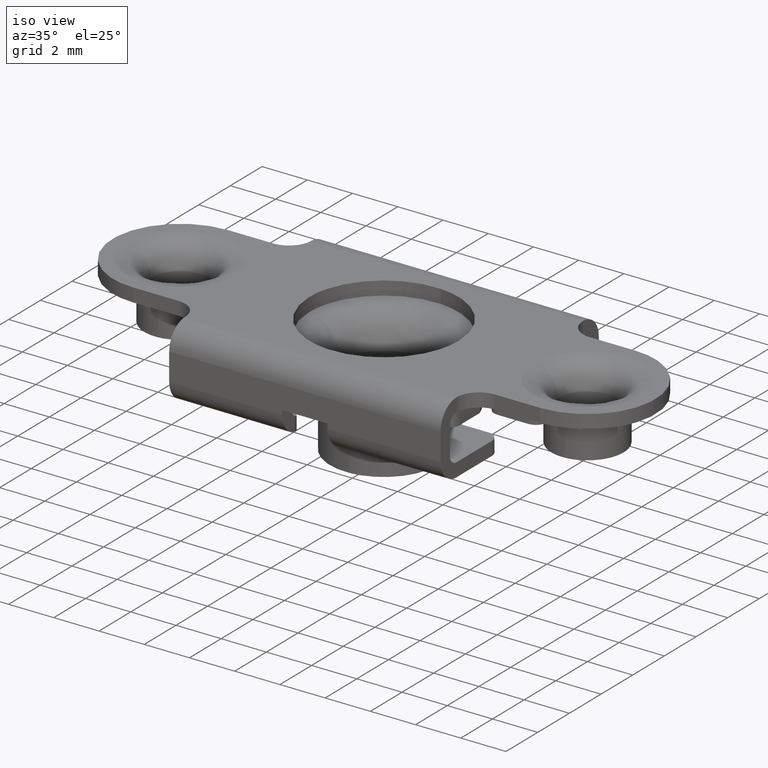
[diagram: clean part render]
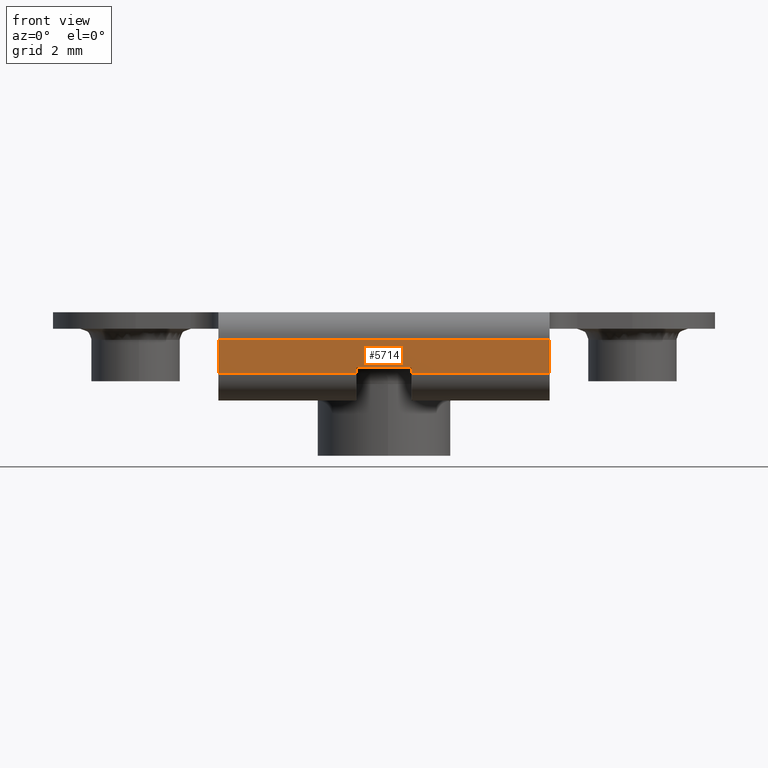
[diagram: tour spotlight — one face highlighted and labeled with its STEP entity id]
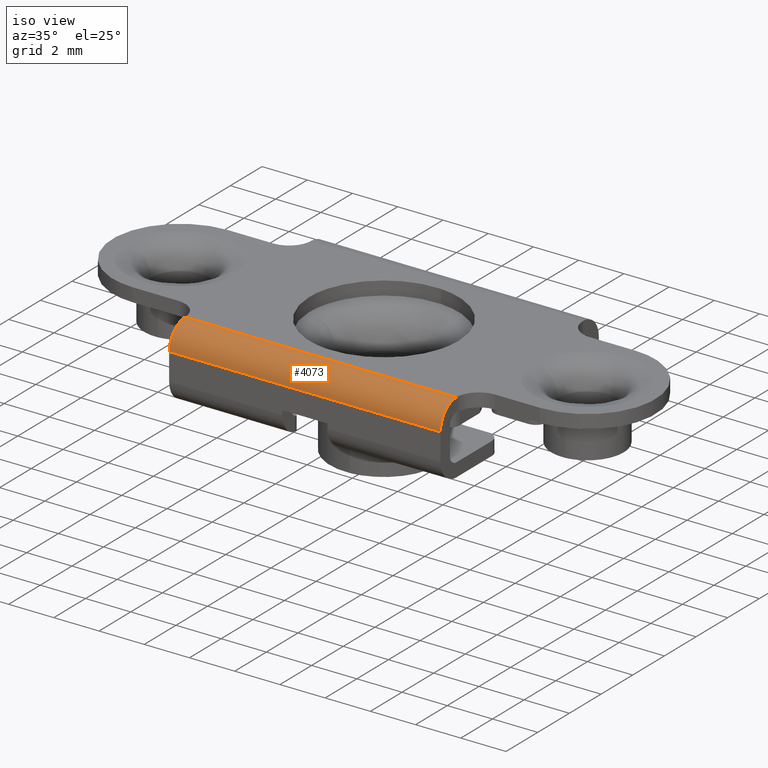
[diagram: tour spotlight — one face highlighted and labeled with its STEP entity id]
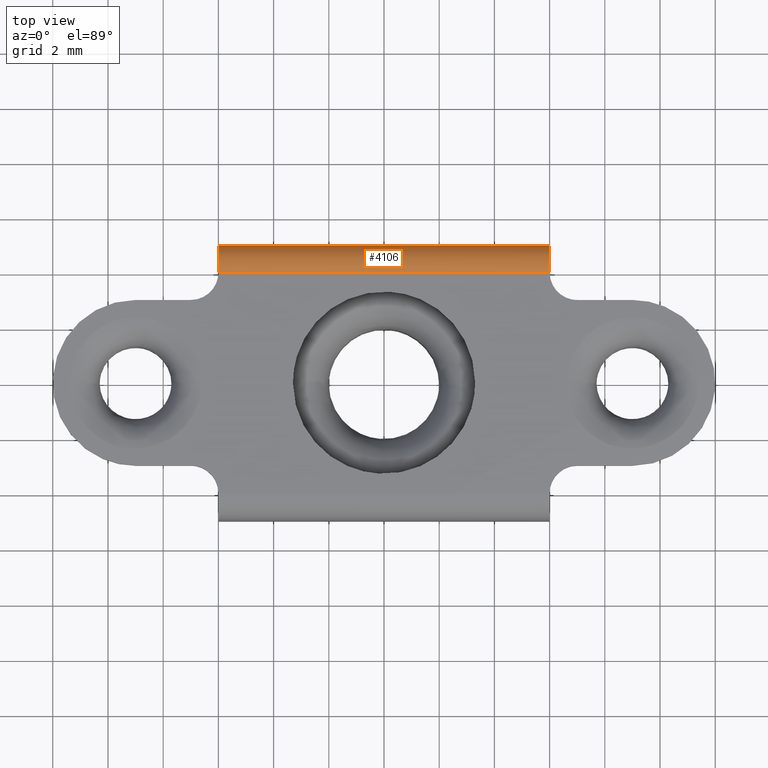
[diagram: tour spotlight — one face highlighted and labeled with its STEP entity id]
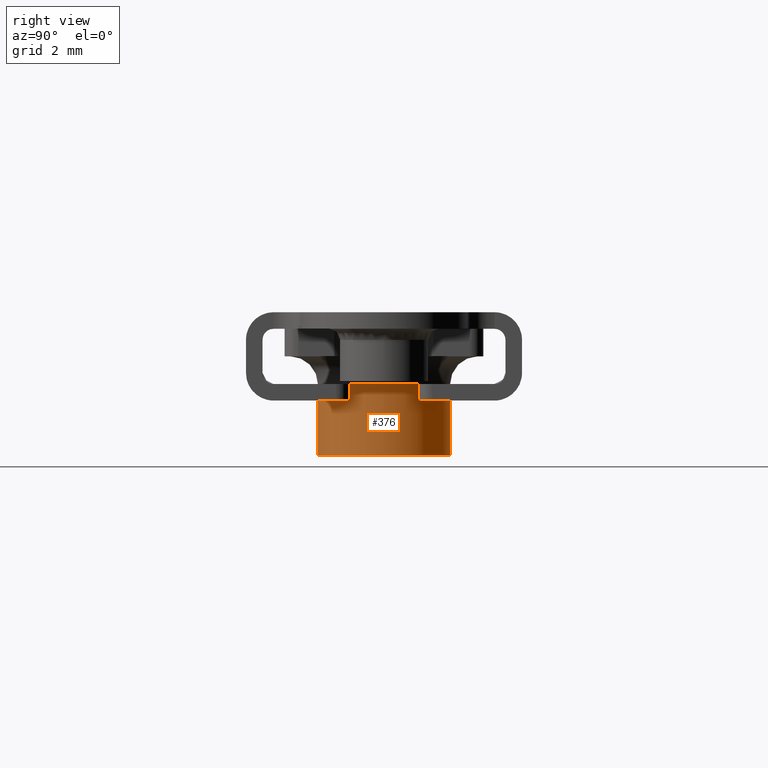
[diagram: tour spotlight — one face highlighted and labeled with its STEP entity id]
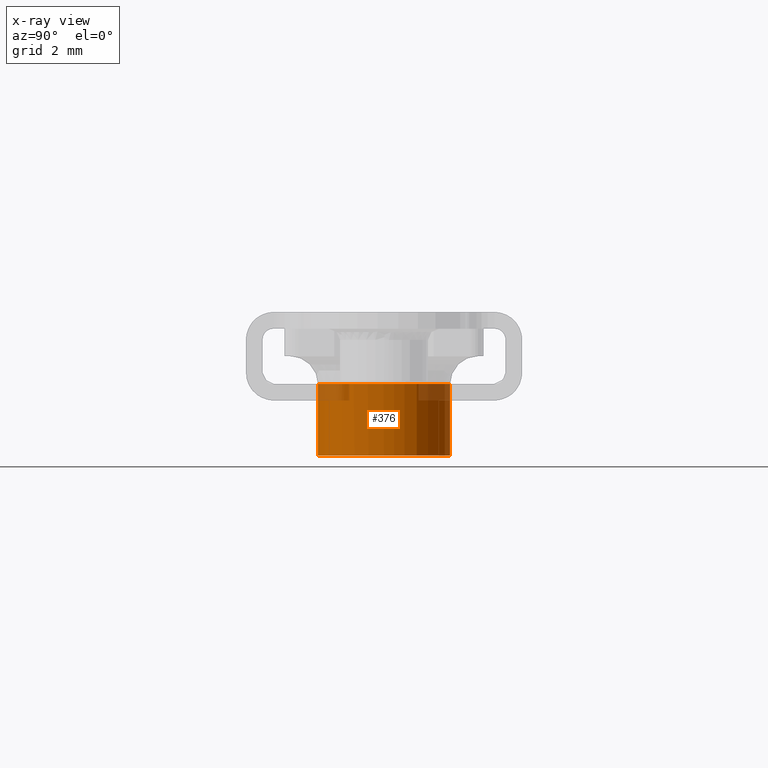
[diagram: x-ray of the same camera — body ghosted, this tour face saturated]
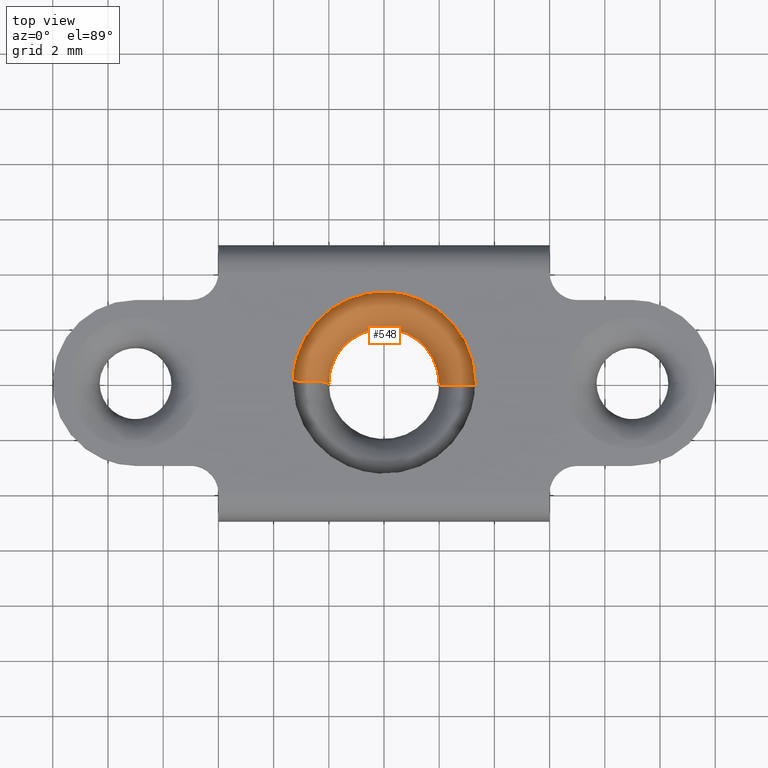
[diagram: tour spotlight — one face highlighted and labeled with its STEP entity id]
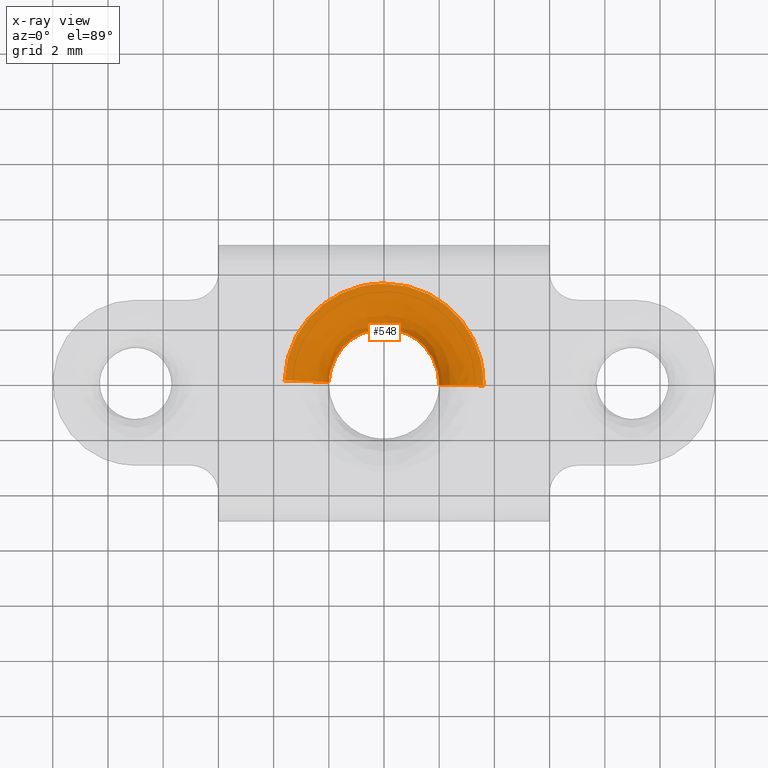
[diagram: x-ray of the same camera — body ghosted, this tour face saturated]
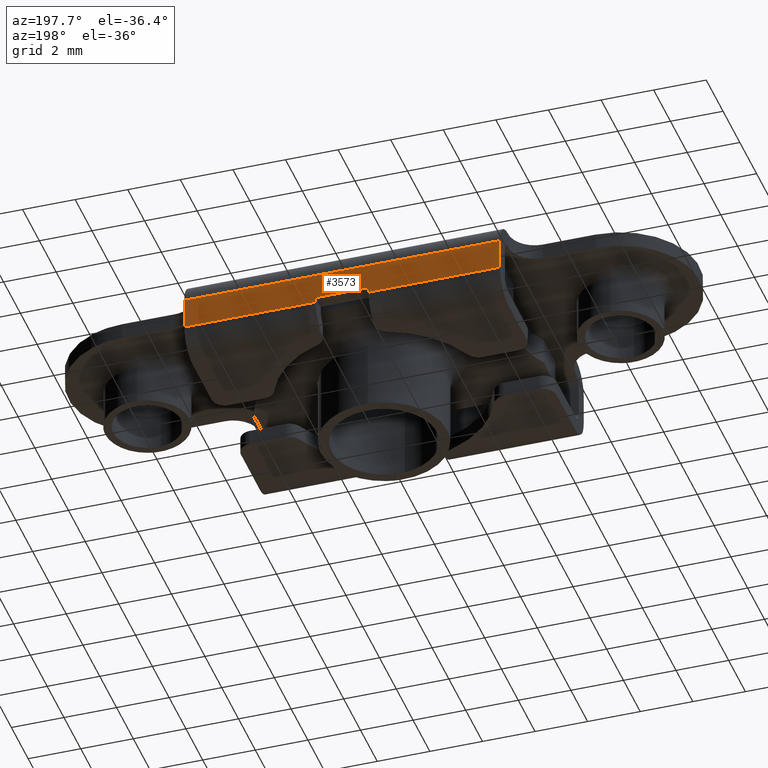
[diagram: tour spotlight — one face highlighted and labeled with its STEP entity id]
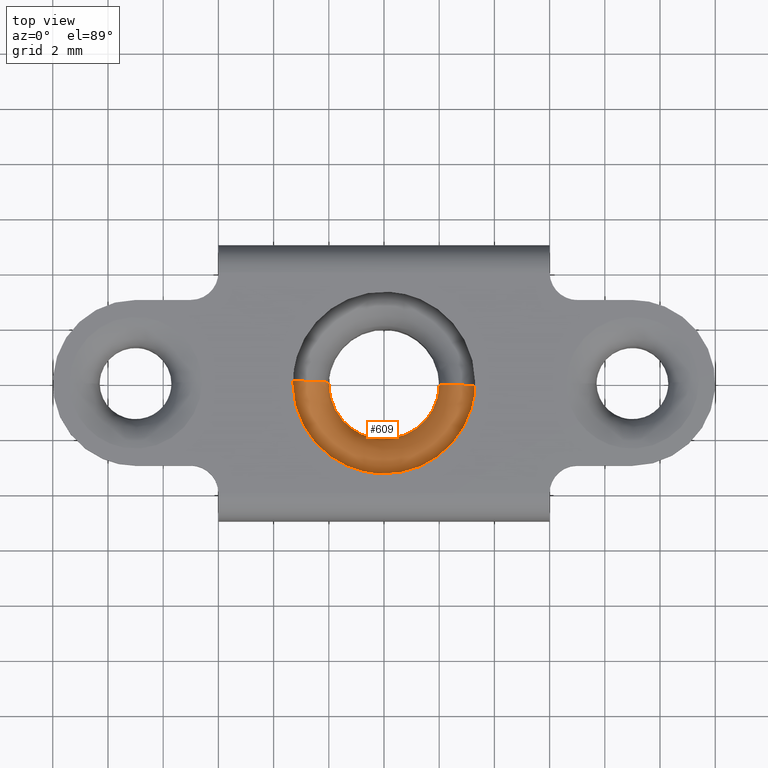
[diagram: tour spotlight — one face highlighted and labeled with its STEP entity id]
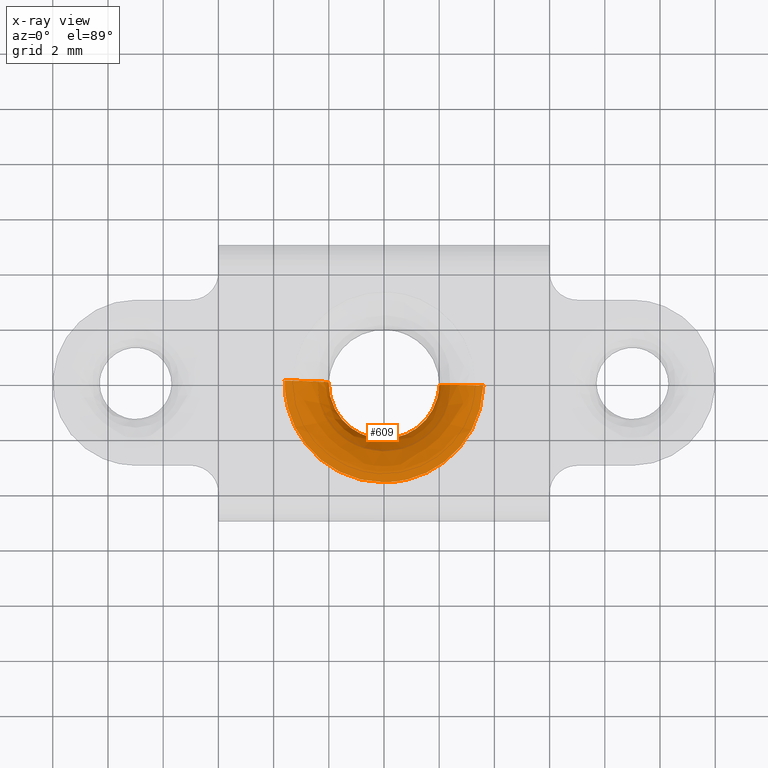
[diagram: x-ray of the same camera — body ghosted, this tour face saturated]
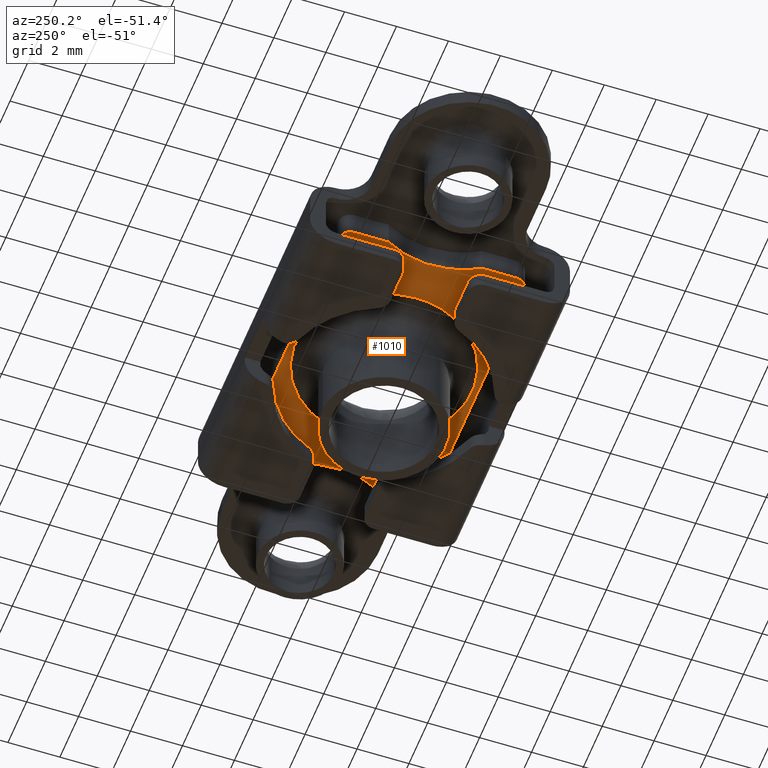
[diagram: tour spotlight — one face highlighted and labeled with its STEP entity id]
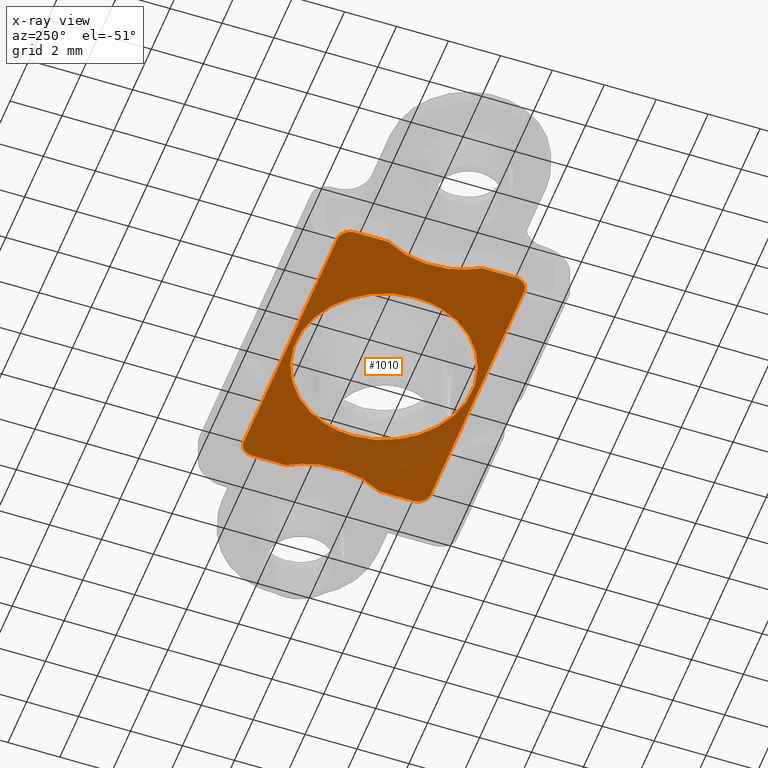
[diagram: x-ray of the same camera — body ghosted, this tour face saturated]
A machine part: a face-by-face anatomy tour. The part has 110 B-rep faces; the first image is the clean iso view, then the 8 largest visible faces are spotlighted one at a time (largest first), each with its STEP entity span.

Face 1 — front view, entity #5714. In plain terms, the highlighted face is a freeform B-spline surface patch.
Definition (entity closure, byte-faithful):
#3076=CARTESIAN_POINT('',(6.0,-5.0,-1.0));
#3077=VERTEX_POINT('',#3076);
#3091=CARTESIAN_POINT('',(6.0,-4.999999999995400,-2.199999999986035));
#3092=VERTEX_POINT('',#3091);
#3093=CARTESIAN_POINT('',(6.0,-4.999999999995400,-2.199999999986035));
#3094=CARTESIAN_POINT('',(6.0,-5.0,-1.0));
#3095=QUASI_UNIFORM_CURVE('',1,(#3093,#3094),.UNSPECIFIED.,.F.,.U.);
#3096=EDGE_CURVE('',#3092,#3077,#3095,.T.);
#4051=CARTESIAN_POINT('',(-6.0,-5.0,-1.0));
#4052=VERTEX_POINT('',#4051);
#4066=CARTESIAN_POINT('',(6.0,-5.0,-1.0));
#4067=CARTESIAN_POINT('',(-6.0,-5.0,-1.0));
#4068=QUASI_UNIFORM_CURVE('',1,(#4066,#4067),.UNSPECIFIED.,.F.,.U.);
#4069=EDGE_CURVE('',#3077,#4052,#4068,.T.);
#4932=CARTESIAN_POINT('',(1.0,-4.999999999997440,-2.199999999984400));
#4933=VERTEX_POINT('',#4932);
#4947=CARTESIAN_POINT('',(1.0,-4.999999999997450,-1.999999999999885));
#4948=VERTEX_POINT('',#4947);
#4949=CARTESIAN_POINT('',(1.0,-4.999999999997440,-2.199999999984400));
#4950=CARTESIAN_POINT('',(1.0,-4.999999999997450,-1.999999999999885));
#4951=QUASI_UNIFORM_CURVE('',1,(#4949,#4950),.UNSPECIFIED.,.F.,.U.);
#4952=EDGE_CURVE('',#4933,#4948,#4951,.T.);
#4974=CARTESIAN_POINT('',(-1.0,-4.999999999997440,-2.199999999984400));
#4975=VERTEX_POINT('',#4974);
#5012=CARTESIAN_POINT('',(-1.0,-4.999999999997450,-1.999999999999945));
#5013=VERTEX_POINT('',#5012);
#5019=CARTESIAN_POINT('',(-1.0,-4.999999999997450,-1.999999999999945));
#5020=CARTESIAN_POINT('',(-1.0,-4.999999999997440,-2.199999999984400));
#5021=QUASI_UNIFORM_CURVE('',1,(#5019,#5020),.UNSPECIFIED.,.F.,.U.);
#5022=EDGE_CURVE('',#5013,#4975,#5021,.T.);
#5038=CARTESIAN_POINT('',(1.0,-4.999999999997450,-1.999999999999885));
#5039=CARTESIAN_POINT('',(-1.0,-4.999999999997450,-1.999999999999945));
#5040=QUASI_UNIFORM_CURVE('',1,(#5038,#5039),.UNSPECIFIED.,.F.,.U.);
#5041=EDGE_CURVE('',#4948,#5013,#5040,.T.);
#5365=CARTESIAN_POINT('',(1.0,-4.999999999997440,-2.199999999984400));
#5366=CARTESIAN_POINT('',(6.0,-4.999999999995400,-2.199999999986035));
#5367=QUASI_UNIFORM_CURVE('',1,(#5365,#5366),.UNSPECIFIED.,.F.,.U.);
#5368=EDGE_CURVE('',#4933,#3092,#5367,.T.);
#5640=CARTESIAN_POINT('',(-6.0,-4.999999999995400,-2.199999999986035));
#5641=VERTEX_POINT('',#5640);
#5642=CARTESIAN_POINT('',(-6.0,-4.999999999995400,-2.199999999986035));
#5643=CARTESIAN_POINT('',(-6.0,-5.0,-1.0));
#5644=QUASI_UNIFORM_CURVE('',1,(#5642,#5643),.UNSPECIFIED.,.F.,.U.);
#5645=EDGE_CURVE('',#5641,#4052,#5644,.T.);
#5695=CARTESIAN_POINT('',(-6.599399976741672,-5.0,-2.259939997659505));
#5696=CARTESIAN_POINT('',(-6.599399976741672,-5.0,-0.940059970140022));
#5697=CARTESIAN_POINT('',(6.599400298606754,-5.0,-2.259939997659505));
#5698=CARTESIAN_POINT('',(6.599400298606754,-5.0,-0.940059970140022));
#5699=B_SPLINE_SURFACE_WITH_KNOTS('',1,1,((#5695,#5697),(#5696,#5698)),.UNSPECIFIED.,.F.,.F.,.U.,(2,2),(2,2),(0.041708334948495,0.958291687403247),(0.0,13.198800275348431),.UNSPECIFIED.);
#5700=ORIENTED_EDGE('',*,*,#3096,.T.);
#5701=ORIENTED_EDGE('',*,*,#4069,.T.);
#5702=ORIENTED_EDGE('',*,*,#5645,.F.);
#5703=CARTESIAN_POINT('',(-6.0,-4.999999999995400,-2.199999999986035));
#5704=CARTESIAN_POINT('',(-1.0,-4.999999999997440,-2.199999999984400));
#5705=QUASI_UNIFORM_CURVE('',1,(#5703,#5704),.UNSPECIFIED.,.F.,.U.);
#5706=EDGE_CURVE('',#5641,#4975,#5705,.T.);
#5707=ORIENTED_EDGE('',*,*,#5706,.T.);
#5708=ORIENTED_EDGE('',*,*,#5022,.F.);
#5709=ORIENTED_EDGE('',*,*,#5041,.F.);
#5710=ORIENTED_EDGE('',*,*,#4952,.F.);
#5711=ORIENTED_EDGE('',*,*,#5368,.T.);
#5712=EDGE_LOOP('',(#5700,#5701,#5702,#5707,#5708,#5709,#5710,#5711));
#5713=FACE_OUTER_BOUND('',#5712,.T.);
#5714=ADVANCED_FACE('',(#5713),#5699,.F.);

Face 2 — iso view, entity #4073. In plain terms, the highlighted face is a freeform B-spline surface patch.
Definition (entity closure, byte-faithful):
#3069=CARTESIAN_POINT('',(6.0,-4.0,0.0));
#3070=VERTEX_POINT('',#3069);
#3076=CARTESIAN_POINT('',(6.0,-5.0,-1.0));
#3077=VERTEX_POINT('',#3076);
#3078=CARTESIAN_POINT('',(6.0,-4.0,0.0));
#3079=CARTESIAN_POINT('',(6.0,-5.000000000000001,0.0));
#3080=CARTESIAN_POINT('',(6.0,-5.0,-1.0));
#3088=(BOUNDED_CURVE()B_SPLINE_CURVE(2,(#3078,#3079,#3080),.UNSPECIFIED.,.F.,.U.)CURVE()GEOMETRIC_REPRESENTATION_ITEM()QUASI_UNIFORM_CURVE()RATIONAL_B_SPLINE_CURVE((1.0,0.707106781186548,1.0))REPRESENTATION_ITEM(''));
#3089=EDGE_CURVE('',#3070,#3077,#3088,.T.);
#3644=CARTESIAN_POINT('',(-6.0,-4.0,0.0));
#3645=VERTEX_POINT('',#3644);
#3659=CARTESIAN_POINT('',(-6.0,-4.0,0.0));
#3660=CARTESIAN_POINT('',(6.0,-4.0,0.0));
#3661=QUASI_UNIFORM_CURVE('',1,(#3659,#3660),.UNSPECIFIED.,.F.,.U.);
#3662=EDGE_CURVE('',#3645,#3070,#3661,.T.);
#4035=CARTESIAN_POINT('',(6.300000000000001,-3.991273464501627,-0.000038076935829));
#4036=CARTESIAN_POINT('',(-6.307500000000003,-3.991273464501627,-0.000038076935829));
#4037=CARTESIAN_POINT('',(6.300000000000001,-5.063601342011753,0.009319986679546));
#4038=CARTESIAN_POINT('',(-6.307500000000002,-5.063601342011753,0.009319986679546));
#4039=CARTESIAN_POINT('',(6.300000000000001,-4.998134798421867,-1.061048539534857));
#4040=CARTESIAN_POINT('',(-6.307500000000003,-4.998134798421867,-1.061048539534857));
#4048=(BOUNDED_SURFACE()B_SPLINE_SURFACE(1,2,((#4035,#4037,#4039),(#4036,#4038,#4040)),.UNSPECIFIED.,.F.,.F.,.U.)B_SPLINE_SURFACE_WITH_KNOTS((2,2),(3,3),(0.0,12.607500000000000),(0.0,1.0),.UNSPECIFIED.)GEOMETRIC_REPRESENTATION_ITEM()RATIONAL_B_SPLINE_SURFACE(((1.0,0.681998360062499,1.0),(1.0,0.681998360062499,1.0)))REPRESENTATION_ITEM('')SURFACE());
#4049=ORIENTED_EDGE('',*,*,#3089,.F.);
#4050=ORIENTED_EDGE('',*,*,#3662,.F.);
#4051=CARTESIAN_POINT('',(-6.0,-5.0,-1.0));
#4052=VERTEX_POINT('',#4051);
#4053=CARTESIAN_POINT('',(-6.0,-5.0,-1.0));
#4054=CARTESIAN_POINT('',(-6.0,-5.000000000000001,0.0));
#4055=CARTESIAN_POINT('',(-6.0,-4.0,0.0));
#4063=(BOUNDED_CURVE()B_SPLINE_CURVE(2,(#4053,#4054,#4055),.UNSPECIFIED.,.F.,.U.)CURVE()GEOMETRIC_REPRESENTATION_ITEM()QUASI_UNIFORM_CURVE()RATIONAL_B_SPLINE_CURVE((1.0,0.707106781186548,1.0))REPRESENTATION_ITEM(''));
#4064=EDGE_CURVE('',#4052,#3645,#4063,.T.);
#4065=ORIENTED_EDGE('',*,*,#4064,.F.);
#4066=CARTESIAN_POINT('',(6.0,-5.0,-1.0));
#4067=CARTESIAN_POINT('',(-6.0,-5.0,-1.0));
#4068=QUASI_UNIFORM_CURVE('',1,(#4066,#4067),.UNSPECIFIED.,.F.,.U.);
#4069=EDGE_CURVE('',#3077,#4052,#4068,.T.);
#4070=ORIENTED_EDGE('',*,*,#4069,.F.);
#4071=EDGE_LOOP('',(#4049,#4050,#4065,#4070));
#4072=FACE_OUTER_BOUND('',#4071,.T.);
#4073=ADVANCED_FACE('',(#4072),#4048,.T.);

Face 3 — top view, entity #4106. In plain terms, the highlighted face is a freeform B-spline surface patch.
Definition (entity closure, byte-faithful):
#3377=CARTESIAN_POINT('',(6.0,3.999999999999945,0.0));
#3378=VERTEX_POINT('',#3377);
#3423=CARTESIAN_POINT('',(6.0,4.999999999999941,-1.0));
#3424=VERTEX_POINT('',#3423);
#3430=CARTESIAN_POINT('',(6.0,4.999999999999946,-1.0));
#3431=CARTESIAN_POINT('',(6.0,4.999999999999947,0.0));
#3432=CARTESIAN_POINT('',(6.0,3.999999999999945,0.0));
#3440=(BOUNDED_CURVE()B_SPLINE_CURVE(2,(#3430,#3431,#3432),.UNSPECIFIED.,.F.,.U.)CURVE()GEOMETRIC_REPRESENTATION_ITEM()QUASI_UNIFORM_CURVE()RATIONAL_B_SPLINE_CURVE((1.0,0.707106781186548,1.0))REPRESENTATION_ITEM(''));
#3441=EDGE_CURVE('',#3424,#3378,#3440,.T.);
#3525=CARTESIAN_POINT('',(-6.0,4.999999999999941,-1.0));
#3526=VERTEX_POINT('',#3525);
#3532=CARTESIAN_POINT('',(-6.0,4.999999999999941,-1.0));
#3533=CARTESIAN_POINT('',(6.0,4.999999999999941,-1.0));
#3534=QUASI_UNIFORM_CURVE('',1,(#3532,#3533),.UNSPECIFIED.,.F.,.U.);
#3535=EDGE_CURVE('',#3526,#3424,#3534,.T.);
#3580=CARTESIAN_POINT('',(-6.0,3.999999999999945,0.0));
#3581=VERTEX_POINT('',#3580);
#3582=CARTESIAN_POINT('',(6.0,3.999999999999945,0.0));
#3583=CARTESIAN_POINT('',(-6.0,3.999999999999945,0.0));
#3584=QUASI_UNIFORM_CURVE('',1,(#3582,#3583),.UNSPECIFIED.,.F.,.U.);
#3585=EDGE_CURVE('',#3378,#3581,#3584,.T.);
#4074=CARTESIAN_POINT('',(-6.300000000000001,3.973823051692071,-0.000342675024443));
#4075=CARTESIAN_POINT('',(6.307500000000003,3.973823051692071,-0.000342675024443));
#4076=CARTESIAN_POINT('',(-6.300000000000001,5.064757588594063,0.028224451195991));
#4077=CARTESIAN_POINT('',(6.307500000000002,5.064757588594063,0.028224451195991));
#4078=CARTESIAN_POINT('',(-6.300000000000001,4.998134798421812,-1.061048539534856));
#4079=CARTESIAN_POINT('',(6.307500000000003,4.998134798421812,-1.061048539534856));
#4087=(BOUNDED_SURFACE()B_SPLINE_SURFACE(1,2,((#4074,#4076,#4078),(#4075,#4077,#4079)),.UNSPECIFIED.,.F.,.F.,.U.)B_SPLINE_SURFACE_WITH_KNOTS((2,2),(3,3),(0.0,12.607500000000000),(0.0,1.0),.UNSPECIFIED.)GEOMETRIC_REPRESENTATION_ITEM()RATIONAL_B_SPLINE_SURFACE(((1.0,0.675590207615660,1.0),(1.0,0.675590207615660,1.0)))REPRESENTATION_ITEM('')SURFACE());
#4088=CARTESIAN_POINT('',(-6.0,3.999999999999945,0.0));
#4089=CARTESIAN_POINT('',(-6.0,4.999999999999947,0.0));
#4090=CARTESIAN_POINT('',(-6.0,4.999999999999946,-1.0));
#4098=(BOUNDED_CURVE()B_SPLINE_CURVE(2,(#4088,#4089,#4090),.UNSPECIFIED.,.F.,.U.)CURVE()GEOMETRIC_REPRESENTATION_ITEM()QUASI_UNIFORM_CURVE()RATIONAL_B_SPLINE_CURVE((1.0,0.707106781186548,1.0))REPRESENTATION_ITEM(''));
#4099=EDGE_CURVE('',#3581,#3526,#4098,.T.);
#4100=ORIENTED_EDGE('',*,*,#4099,.F.);
#4101=ORIENTED_EDGE('',*,*,#3585,.F.);
#4102=ORIENTED_EDGE('',*,*,#3441,.F.);
#4103=ORIENTED_EDGE('',*,*,#3535,.F.);
#4104=EDGE_LOOP('',(#4100,#4101,#4102,#4103));
#4105=FACE_OUTER_BOUND('',#4104,.T.);
#4106=ADVANCED_FACE('',(#4105),#4087,.T.);

Face 4 — right view, entity #376. An x-ray twin of the same camera follows (body ghosted, this face saturated) — the face is partly hidden behind the body. In plain terms, the highlighted face is a freeform B-spline surface patch.
Definition (entity closure, byte-faithful):
#12=CARTESIAN_POINT('',(-0.146516179513301,2.395523535515243,-5.199999999984399));
#13=VERTEX_POINT('',#12);
#27=CARTESIAN_POINT('',(2.400000000007436,5.883294E-012,-5.199999999984399));
#28=VERTEX_POINT('',#27);
#29=CARTESIAN_POINT('',(-0.146516179513301,2.395523535515243,-5.199999999984399));
#30=CARTESIAN_POINT('',(-0.073326473789326,2.400000000013881,-5.199999999984398));
#31=CARTESIAN_POINT('',(-4.690716E-014,2.400000000013872,-5.199999999984398));
#32=CARTESIAN_POINT('',(2.400000000007420,2.400000000013595,-5.199999999984399));
#33=CARTESIAN_POINT('',(2.400000000007436,5.883294E-012,-5.199999999984399));
#41=(BOUNDED_CURVE()B_SPLINE_CURVE(2,(#29,#30,#31,#32,#33),.UNSPECIFIED.,.F.,.U.)B_SPLINE_CURVE_WITH_KNOTS((3,2,3),(0.239332984957767,0.250000000000000,0.500000000000000),.UNSPECIFIED.)CURVE()GEOMETRIC_REPRESENTATION_ITEM()RATIONAL_B_SPLINE_CURVE((0.976072090357488,0.987502814516596,1.0,0.707106781186548,1.0))REPRESENTATION_ITEM(''));
#42=EDGE_CURVE('',#13,#28,#41,.T.);
#44=CARTESIAN_POINT('',(0.146516179513273,-2.395523535503476,-5.199999999984399));
#45=VERTEX_POINT('',#44);
#46=CARTESIAN_POINT('',(2.400000000007436,5.883294E-012,-5.199999999984399));
#47=CARTESIAN_POINT('',(2.400000000007454,-2.257694858356175,-5.199999999984400));
#48=CARTESIAN_POINT('',(0.146516179513273,-2.395523535503476,-5.199999999984399));
#56=(BOUNDED_CURVE()B_SPLINE_CURVE(2,(#46,#47,#48),.UNSPECIFIED.,.F.,.U.)B_SPLINE_CURVE_WITH_KNOTS((3,3),(0.500000000000000,0.739332984957767),.UNSPECIFIED.)CURVE()GEOMETRIC_REPRESENTATION_ITEM()RATIONAL_B_SPLINE_CURVE((1.0,0.719603966669952,0.976072090357488))REPRESENTATION_ITEM(''));
#57=EDGE_CURVE('',#28,#45,#56,.T.);
#295=CARTESIAN_POINT('',(-0.146516494884196,2.395523516226952,-2.534999999973389));
#296=CARTESIAN_POINT('',(2.249007021336873,2.542040011111135,-2.534999999973389));
#297=CARTESIAN_POINT('',(2.395523516221055,0.146516494890065,-2.534999999973389));
#298=CARTESIAN_POINT('',(2.542040011105237,-2.249007021331003,-2.534999999973389));
#299=CARTESIAN_POINT('',(0.146516494884168,-2.395523516215186,-2.534999999973389));
#300=CARTESIAN_POINT('',(-0.146516494884196,2.395523516226952,-5.266624999984676));
#301=CARTESIAN_POINT('',(2.249007021336873,2.542040011111135,-5.266624999984676));
#302=CARTESIAN_POINT('',(2.395523516221055,0.146516494890065,-5.266624999984676));
#303=CARTESIAN_POINT('',(2.542040011105237,-2.249007021331003,-5.266624999984676));
#304=CARTESIAN_POINT('',(0.146516494884168,-2.395523516215186,-5.266624999984676));
#312=(BOUNDED_SURFACE()B_SPLINE_SURFACE(2,1,((#295,#300),(#296,#301),(#297,#302),(#298,#303),(#299,#304)),.UNSPECIFIED.,.F.,.F.,.U.)B_SPLINE_SURFACE_WITH_KNOTS((3,2,3),(2,2),(0.0,3.976450198795968,7.952900397591936),(0.0,2.731625000011288),.UNSPECIFIED.)GEOMETRIC_REPRESENTATION_ITEM()RATIONAL_B_SPLINE_SURFACE(((1.0,1.0),(0.707106781186548,0.707106781186548),(1.0,1.0),(0.707106781186548,0.707106781186548),(1.0,1.0)))REPRESENTATION_ITEM('')SURFACE());
#313=CARTESIAN_POINT('',(-0.146516388563028,2.395523522730405,-2.599999999978278));
#314=VERTEX_POINT('',#313);
#315=CARTESIAN_POINT('',(2.400000000009740,5.883294E-012,-2.599999999983565));
#316=VERTEX_POINT('',#315);
#317=CARTESIAN_POINT('',(-0.146516388563028,2.395523522730406,-2.599999999978278));
#318=CARTESIAN_POINT('',(-0.073326578607232,2.400000000015070,-2.599999999978429));
#319=CARTESIAN_POINT('',(2.062909E-014,2.400000000015079,-2.599999999978581));
#320=CARTESIAN_POINT('',(2.400000000009757,2.400000000015367,-2.599999999983535));
#321=CARTESIAN_POINT('',(2.400000000009740,5.883294E-012,-2.599999999983565));
#329=(BOUNDED_CURVE()B_SPLINE_CURVE(2,(#317,#318,#319,#320,#321),.UNSPECIFIED.,.F.,.U.)B_SPLINE_CURVE_WITH_KNOTS((3,2,3),(0.239332969900162,0.250000000000000,0.500000000000000),.UNSPECIFIED.)CURVE()GEOMETRIC_REPRESENTATION_ITEM()RATIONAL_B_SPLINE_CURVE((0.976072058086168,0.987502796875513,1.0,0.707106781186547,1.0))REPRESENTATION_ITEM(''));
#330=EDGE_CURVE('',#314,#316,#329,.T.);
#331=ORIENTED_EDGE('',*,*,#330,.T.);
#332=CARTESIAN_POINT('',(2.399810505945241,-0.030158507941280,-2.599999999973657));
#333=VERTEX_POINT('',#332);
#334=CARTESIAN_POINT('',(2.400000000009740,5.883294E-012,-2.599999999983565));
#335=CARTESIAN_POINT('',(2.400000000009740,-0.015079849288935,-2.599999999978611));
#336=CARTESIAN_POINT('',(2.399810505945241,-0.030158507941280,-2.599999999973657));
#344=(BOUNDED_CURVE()B_SPLINE_CURVE(2,(#334,#335,#336),.UNSPECIFIED.,.F.,.U.)B_SPLINE_CURVE_WITH_KNOTS((3,3),(0.500000000000000,0.502215704974312),.UNSPECIFIED.)CURVE()GEOMETRIC_REPRESENTATION_ITEM()RATIONAL_B_SPLINE_CURVE((1.0,0.997404140152532,0.994854293581676))REPRESENTATION_ITEM(''));
#345=EDGE_CURVE('',#316,#333,#344,.T.);
#346=ORIENTED_EDGE('',*,*,#345,.T.);
#347=CARTESIAN_POINT('',(0.146516388562999,-2.395523522718638,-2.599999999978278));
#348=VERTEX_POINT('',#347);
#349=CARTESIAN_POINT('',(2.399810505945241,-0.030158507941280,-2.599999999973657));
#350=CARTESIAN_POINT('',(2.371795297155663,-2.259419733238445,-2.599999999973687));
#351=CARTESIAN_POINT('',(0.146516388562999,-2.395523522718638,-2.599999999978278));
#359=(BOUNDED_CURVE()B_SPLINE_CURVE(2,(#349,#350,#351),.UNSPECIFIED.,.F.,.U.)B_SPLINE_CURVE_WITH_KNOTS((3,3),(0.502215704974312,0.739332969900162),.UNSPECIFIED.)CURVE()GEOMETRIC_REPRESENTATION_ITEM()RATIONAL_B_SPLINE_CURVE((0.994854293581676,0.721978323237479,0.976072058086169))REPRESENTATION_ITEM(''));
#360=EDGE_CURVE('',#333,#348,#359,.T.);
#361=ORIENTED_EDGE('',*,*,#360,.T.);
#362=CARTESIAN_POINT('',(0.146516388562999,-2.395523522718638,-2.599999999978278));
#363=CARTESIAN_POINT('',(0.146516179513273,-2.395523535503476,-5.199999999984399));
#364=QUASI_UNIFORM_CURVE('',1,(#362,#363),.UNSPECIFIED.,.F.,.U.);
#365=EDGE_CURVE('',#348,#45,#364,.T.);
#366=ORIENTED_EDGE('',*,*,#365,.T.);
#367=ORIENTED_EDGE('',*,*,#57,.F.);
#368=ORIENTED_EDGE('',*,*,#42,.F.);
#369=CARTESIAN_POINT('',(-0.146516388563028,2.395523522730405,-2.599999999978278));
#370=CARTESIAN_POINT('',(-0.146516179513301,2.395523535515243,-5.199999999984399));
#371=QUASI_UNIFORM_CURVE('',1,(#369,#370),.UNSPECIFIED.,.F.,.U.);
#372=EDGE_CURVE('',#314,#13,#371,.T.);
#373=ORIENTED_EDGE('',*,*,#372,.F.);
#374=EDGE_LOOP('',(#331,#346,#361,#366,#367,#368,#373));
#375=FACE_OUTER_BOUND('',#374,.T.);
#376=ADVANCED_FACE('',(#375),#312,.T.);

Face 5 — top view, entity #548. An x-ray twin of the same camera follows (body ghosted, this face saturated) — the face is partly hidden behind the body. In plain terms, the highlighted face is a freeform B-spline surface patch.
Definition (entity closure, byte-faithful):
#163=CARTESIAN_POINT('',(1.999368421162009,-0.050258496369028,-2.200000077293230));
#164=VERTEX_POINT('',#163);
#180=CARTESIAN_POINT('',(2.0,0.0,-2.199999999984435));
#181=VERTEX_POINT('',#180);
#182=CARTESIAN_POINT('',(1.999368421162009,-0.050258496369028,-2.200000077293230));
#183=CARTESIAN_POINT('',(1.999999999999643,-0.025133216586441,-2.200000038638833));
#184=CARTESIAN_POINT('',(2.0,0.0,-2.199999999984435));
#192=(BOUNDED_CURVE()B_SPLINE_CURVE(2,(#182,#183,#184),.UNSPECIFIED.,.F.,.U.)B_SPLINE_CURVE_WITH_KNOTS((3,3),(0.995580040068485,1.0),.UNSPECIFIED.)CURVE()GEOMETRIC_REPRESENTATION_ITEM()RATIONAL_B_SPLINE_CURVE((0.989826492879814,0.994821694834529,1.0))REPRESENTATION_ITEM(''));
#193=EDGE_CURVE('',#164,#181,#192,.T.);
#195=CARTESIAN_POINT('',(0.156918191465270,1.993834667465511,-2.200000036090267));
#196=VERTEX_POINT('',#195);
#197=CARTESIAN_POINT('',(2.0,0.0,-2.199999999984435));
#198=CARTESIAN_POINT('',(2.000000000000004,1.848780983307813,-2.200000000433461));
#199=CARTESIAN_POINT('',(0.156918191465271,1.993834667465519,-2.200000036090267));
#207=(BOUNDED_CURVE()B_SPLINE_CURVE(2,(#197,#198,#199),.UNSPECIFIED.,.F.,.U.)B_SPLINE_CURVE_WITH_KNOTS((3,3),(0.0,0.236331300631972),.UNSPECIFIED.)CURVE()GEOMETRIC_REPRESENTATION_ITEM()RATIONAL_B_SPLINE_CURVE((1.0,0.723120658606128,0.969723356170156))REPRESENTATION_ITEM(''));
#208=EDGE_CURVE('',#181,#196,#207,.T.);
#262=CARTESIAN_POINT('',(-1.999368421162009,0.050258496369029,-2.200000077293157));
#263=VERTEX_POINT('',#262);
#264=CARTESIAN_POINT('',(0.156918191465270,1.993834667465510,-2.200000036090267));
#265=CARTESIAN_POINT('',(0.078580214020332,1.999999999999991,-2.200000037605817));
#266=CARTESIAN_POINT('',(3.617594E-013,1.999999999999991,-2.200000039124551));
#267=CARTESIAN_POINT('',(-1.950357405861577,1.999999999999983,-2.200000076819460));
#268=CARTESIAN_POINT('',(-1.999368421162009,0.050258496369029,-2.200000077293157));
#276=(BOUNDED_CURVE()B_SPLINE_CURVE(2,(#264,#265,#266,#267,#268),.UNSPECIFIED.,.F.,.U.)B_SPLINE_CURVE_WITH_KNOTS((3,2,3),(0.236331300631972,0.250000000000000,0.495580040068485),.UNSPECIFIED.)CURVE()GEOMETRIC_REPRESENTATION_ITEM()RATIONAL_B_SPLINE_CURVE((0.969723356170156,0.983986122580419,1.0,0.712285086352019,0.989826492879813))REPRESENTATION_ITEM(''));
#277=EDGE_CURVE('',#196,#263,#276,.T.);
#447=CARTESIAN_POINT('',(3.710386549736747,-0.093271824368263,-0.603893908112678));
#448=CARTESIAN_POINT('',(3.803658374105009,3.617114725368485,-0.603893908112678));
#449=CARTESIAN_POINT('',(0.093271824368263,3.710386549736747,-0.603893908112678));
#450=CARTESIAN_POINT('',(-3.617114725368483,3.803658374105011,-0.603893908112678));
#451=CARTESIAN_POINT('',(-3.710386549736747,0.093271824368264,-0.603893908112678));
#452=CARTESIAN_POINT('',(1.875670256649439,-0.047150663254586,-0.475617206950014));
#453=CARTESIAN_POINT('',(1.922820919904024,1.828519593394853,-0.475617206950014));
#454=CARTESIAN_POINT('',(0.047150663254586,1.875670256649439,-0.475617206950014));
#455=CARTESIAN_POINT('',(-1.828519593394853,1.922820919904025,-0.475617206950014));
#456=CARTESIAN_POINT('',(-1.875670256649439,0.047150663254586,-0.475617206950014));
#457=CARTESIAN_POINT('',(2.003219407614667,-0.050356998186992,-2.310961012123322));
#458=CARTESIAN_POINT('',(2.053576405801659,1.952862409427676,-2.310961012123321));
#459=CARTESIAN_POINT('',(0.050356998186992,2.003219407614667,-2.310961012123322));
#460=CARTESIAN_POINT('',(-1.952862409427676,2.053576405801659,-2.310961012123321));
#461=CARTESIAN_POINT('',(-2.003219407614667,0.050356998186992,-2.310961012123322));
#469=(BOUNDED_SURFACE()B_SPLINE_SURFACE(2,2,((#447,#452,#457),(#448,#453,#458),(#449,#454,#459),(#450,#455,#460),(#451,#456,#461)),.UNSPECIFIED.,.F.,.F.,.U.)B_SPLINE_SURFACE_WITH_KNOTS((3,2,3),(3,3),(0.0,6.149511803920853,12.299023607841709),(0.0,2.915792638994997),.UNSPECIFIED.)GEOMETRIC_REPRESENTATION_ITEM()RATIONAL_B_SPLINE_SURFACE(((0.910892942541887,0.599412921378678,0.915966645999969),(0.644098576606337,0.423848941437702,0.647686226727276),(0.910892942541887,0.599412921378678,0.915966645999969),(0.644098576606337,0.423848941437702,0.647686226727276),(0.910892942541887,0.599412921378678,0.915966645999969)))REPRESENTATION_ITEM('')SURFACE());
#470=ORIENTED_EDGE('',*,*,#193,.F.);
#471=CARTESIAN_POINT('',(3.598863081156061,-0.090468343718200,-0.599999999984435));
#472=VERTEX_POINT('',#471);
#473=CARTESIAN_POINT('',(3.598863081156061,-0.090468343718200,-0.599999999984435));
#474=CARTESIAN_POINT('',(1.999368322578304,-0.050259341749442,-0.600000000245100));
#475=CARTESIAN_POINT('',(1.999368421162009,-0.050258496369028,-2.200000077293229));
#483=(BOUNDED_CURVE()B_SPLINE_CURVE(2,(#473,#474,#475),.UNSPECIFIED.,.F.,.U.)B_SPLINE_CURVE_WITH_KNOTS((3,3),(-1.723441281817033,-0.263586828920490),.UNSPECIFIED.)CURVE()GEOMETRIC_REPRESENTATION_ITEM()RATIONAL_B_SPLINE_CURVE((0.883897567079547,0.626638718455222,0.888510427003389))REPRESENTATION_ITEM(''));
#484=EDGE_CURVE('',#472,#164,#483,.T.);
#485=ORIENTED_EDGE('',*,*,#484,.F.);
#486=CARTESIAN_POINT('',(3.600000000000000,0.0,-0.599999999984435));
#487=VERTEX_POINT('',#486);
#488=CARTESIAN_POINT('',(3.600000000000000,0.0,-0.599999999984435));
#489=CARTESIAN_POINT('',(3.599999999869708,-0.045241315705290,-0.599999999984435));
#490=CARTESIAN_POINT('',(3.598863081156061,-0.090468343718200,-0.599999999984435));
#498=(BOUNDED_CURVE()B_SPLINE_CURVE(2,(#488,#489,#490),.UNSPECIFIED.,.F.,.U.)B_SPLINE_CURVE_WITH_KNOTS((3,3),(0.0,0.017680432945807),.UNSPECIFIED.)CURVE()GEOMETRIC_REPRESENTATION_ITEM()RATIONAL_B_SPLINE_CURVE((1.0,0.994821521084487,0.989826157667429))REPRESENTATION_ITEM(''));
#499=EDGE_CURVE('',#487,#472,#498,.T.);
#500=ORIENTED_EDGE('',*,*,#499,.F.);
#501=CARTESIAN_POINT('',(-2.201364E-014,3.599999999999165,-0.599999999984391));
#502=VERTEX_POINT('',#501);
#503=CARTESIAN_POINT('',(-2.201364E-014,3.599999999999165,-0.599999999984391));
#504=CARTESIAN_POINT('',(3.600000000000000,3.600000000000000,-0.599999999984391));
#505=CARTESIAN_POINT('',(3.600000000000000,0.0,-0.599999999984391));
#513=(BOUNDED_CURVE()B_SPLINE_CURVE(2,(#503,#504,#505),.UNSPECIFIED.,.F.,.U.)CURVE()GEOMETRIC_REPRESENTATION_ITEM()QUASI_UNIFORM_CURVE()RATIONAL_B_SPLINE_CURVE((1.0,0.707106781186547,1.0))REPRESENTATION_ITEM(''));
#514=EDGE_CURVE('',#502,#487,#513,.T.);
#515=ORIENTED_EDGE('',*,*,#514,.F.);
#516=CARTESIAN_POINT('',(-3.598863081330235,0.090468343646028,-0.599999999984413));
#517=VERTEX_POINT('',#516);
#518=CARTESIAN_POINT('',(-3.598863081330235,0.090468343646028,-0.599999999984413));
#519=CARTESIAN_POINT('',(-3.510640354155213,3.599999999998471,-0.599999999984402));
#520=CARTESIAN_POINT('',(-2.201364E-014,3.599999999999165,-0.599999999984391));
#528=(BOUNDED_CURVE()B_SPLINE_CURVE(2,(#518,#519,#520),.UNSPECIFIED.,.F.,.U.)B_SPLINE_CURVE_WITH_KNOTS((3,3),(0.508840216465464,1.0),.UNSPECIFIED.)CURVE()GEOMETRIC_REPRESENTATION_ITEM()RATIONAL_B_SPLINE_CURVE((0.989826157675836,0.712285260097702,1.0))REPRESENTATION_ITEM(''));
#529=EDGE_CURVE('',#517,#502,#528,.T.);
#530=ORIENTED_EDGE('',*,*,#529,.F.);
#531=CARTESIAN_POINT('',(-3.598863081330234,0.090468343646028,-0.599999999984413));
#532=CARTESIAN_POINT('',(-1.999368322579337,0.050259341711193,-0.600000000072784));
#533=CARTESIAN_POINT('',(-1.999368421162009,0.050258496369029,-2.200000077293157));
#541=(BOUNDED_CURVE()B_SPLINE_CURVE(2,(#531,#532,#533),.UNSPECIFIED.,.F.,.U.)B_SPLINE_CURVE_WITH_KNOTS((3,3),(-1.723441281927911,-0.263586828920537),.UNSPECIFIED.)CURVE()GEOMETRIC_REPRESENTATION_ITEM()RATIONAL_B_SPLINE_CURVE((0.883897567118625,0.626638718435341,0.888510427003373))REPRESENTATION_ITEM(''));
#542=EDGE_CURVE('',#517,#263,#541,.T.);
#543=ORIENTED_EDGE('',*,*,#542,.T.);
#544=ORIENTED_EDGE('',*,*,#277,.F.);
#545=ORIENTED_EDGE('',*,*,#208,.F.);
#546=EDGE_LOOP('',(#470,#485,#500,#515,#530,#543,#544,#545));
#547=FACE_OUTER_BOUND('',#546,.T.);
#548=ADVANCED_FACE('',(#547),#469,.T.);

Face 6 — auxiliary view, entity #3573. In plain terms, the highlighted face is a freeform B-spline surface patch.
Definition (entity closure, byte-faithful):
#3421=CARTESIAN_POINT('',(6.0,4.999999999999490,-2.199999999984400));
#3422=VERTEX_POINT('',#3421);
#3423=CARTESIAN_POINT('',(6.0,4.999999999999941,-1.0));
#3424=VERTEX_POINT('',#3423);
#3425=CARTESIAN_POINT('',(6.0,4.999999999999490,-2.199999999984400));
#3426=CARTESIAN_POINT('',(6.0,4.999999999999941,-1.0));
#3427=QUASI_UNIFORM_CURVE('',1,(#3425,#3426),.UNSPECIFIED.,.F.,.U.);
#3428=EDGE_CURVE('',#3422,#3424,#3427,.T.);
#3518=CARTESIAN_POINT('',(-6.599399976741672,4.999999999999941,-0.940060002326612));
#3519=CARTESIAN_POINT('',(-6.599399976741672,4.999999999999941,-2.259940029844296));
#3520=CARTESIAN_POINT('',(6.599400298606754,4.999999999999941,-0.940060002326612));
#3521=CARTESIAN_POINT('',(6.599400298606754,4.999999999999941,-2.259940029844296));
#3522=B_SPLINE_SURFACE_WITH_KNOTS('',1,1,((#3518,#3520),(#3519,#3521)),.UNSPECIFIED.,.F.,.F.,.U.,(2,2),(2,2),(0.041708334948495,0.958291687403247),(0.0,13.198800275348431),.UNSPECIFIED.);
#3523=CARTESIAN_POINT('',(-6.0,4.999999999999490,-2.199999999984400));
#3524=VERTEX_POINT('',#3523);
#3525=CARTESIAN_POINT('',(-6.0,4.999999999999941,-1.0));
#3526=VERTEX_POINT('',#3525);
#3527=CARTESIAN_POINT('',(-6.0,4.999999999999490,-2.199999999984400));
#3528=CARTESIAN_POINT('',(-6.0,4.999999999999941,-1.0));
#3529=QUASI_UNIFORM_CURVE('',1,(#3527,#3528),.UNSPECIFIED.,.F.,.U.);
#3530=EDGE_CURVE('',#3524,#3526,#3529,.T.);
#3531=ORIENTED_EDGE('',*,*,#3530,.T.);
#3532=CARTESIAN_POINT('',(-6.0,4.999999999999941,-1.0));
#3533=CARTESIAN_POINT('',(6.0,4.999999999999941,-1.0));
#3534=QUASI_UNIFORM_CURVE('',1,(#3532,#3533),.UNSPECIFIED.,.F.,.U.);
#3535=EDGE_CURVE('',#3526,#3424,#3534,.T.);
#3536=ORIENTED_EDGE('',*,*,#3535,.T.);
#3537=ORIENTED_EDGE('',*,*,#3428,.F.);
#3538=CARTESIAN_POINT('',(1.0,4.999999999999490,-2.199999999984400));
#3539=VERTEX_POINT('',#3538);
#3540=CARTESIAN_POINT('',(1.0,4.999999999999490,-2.199999999984400));
#3541=CARTESIAN_POINT('',(6.0,4.999999999999490,-2.199999999984400));
#3542=QUASI_UNIFORM_CURVE('',1,(#3540,#3541),.UNSPECIFIED.,.F.,.U.);
#3543=EDGE_CURVE('',#3539,#3422,#3542,.T.);
#3544=ORIENTED_EDGE('',*,*,#3543,.F.);
#3545=CARTESIAN_POINT('',(1.0,4.999999999999450,-1.999999999999885));
#3546=VERTEX_POINT('',#3545);
#3547=CARTESIAN_POINT('',(1.0,4.999999999999490,-2.199999999984400));
#3548=CARTESIAN_POINT('',(1.0,4.999999999999450,-1.999999999999885));
#3549=QUASI_UNIFORM_CURVE('',1,(#3547,#3548),.UNSPECIFIED.,.F.,.U.);
#3550=EDGE_CURVE('',#3539,#3546,#3549,.T.);
#3551=ORIENTED_EDGE('',*,*,#3550,.T.);
#3552=CARTESIAN_POINT('',(-1.0,4.999999999999450,-1.999999999999945));
#3553=VERTEX_POINT('',#3552);
#3554=CARTESIAN_POINT('',(1.0,4.999999999999450,-1.999999999999885));
#3555=CARTESIAN_POINT('',(-1.0,4.999999999999450,-1.999999999999945));
#3556=QUASI_UNIFORM_CURVE('',1,(#3554,#3555),.UNSPECIFIED.,.F.,.U.);
#3557=EDGE_CURVE('',#3546,#3553,#3556,.T.);
#3558=ORIENTED_EDGE('',*,*,#3557,.T.);
#3559=CARTESIAN_POINT('',(-1.0,4.999999999999490,-2.199999999984400));
#3560=VERTEX_POINT('',#3559);
#3561=CARTESIAN_POINT('',(-1.0,4.999999999999450,-1.999999999999945));
#3562=CARTESIAN_POINT('',(-1.0,4.999999999999490,-2.199999999984400));
#3563=QUASI_UNIFORM_CURVE('',1,(#3561,#3562),.UNSPECIFIED.,.F.,.U.);
#3564=EDGE_CURVE('',#3553,#3560,#3563,.T.);
#3565=ORIENTED_EDGE('',*,*,#3564,.T.);
#3566=CARTESIAN_POINT('',(-6.0,4.999999999999490,-2.199999999984400));
#3567=CARTESIAN_POINT('',(-1.0,4.999999999999490,-2.199999999984400));
#3568=QUASI_UNIFORM_CURVE('',1,(#3566,#3567),.UNSPECIFIED.,.F.,.U.);
#3569=EDGE_CURVE('',#3524,#3560,#3568,.T.);
#3570=ORIENTED_EDGE('',*,*,#3569,.F.);
#3571=EDGE_LOOP('',(#3531,#3536,#3537,#3544,#3551,#3558,#3565,#3570));
#3572=FACE_OUTER_BOUND('',#3571,.T.);
#3573=ADVANCED_FACE('',(#3572),#3522,.F.);

Face 7 — top view, entity #609. An x-ray twin of the same camera follows (body ghosted, this face saturated) — the face is partly hidden behind the body. In plain terms, the highlighted face is a freeform B-spline surface patch.
Definition (entity closure, byte-faithful):
#161=CARTESIAN_POINT('',(-0.156918191465270,-1.993834667465511,-2.200000036090301));
#162=VERTEX_POINT('',#161);
#163=CARTESIAN_POINT('',(1.999368421162009,-0.050258496369028,-2.200000077293230));
#164=VERTEX_POINT('',#163);
#165=CARTESIAN_POINT('',(-0.156918191465270,-1.993834667465510,-2.200000036090301));
#166=CARTESIAN_POINT('',(-0.078580214020332,-1.999999999999991,-2.200000037605852));
#167=CARTESIAN_POINT('',(-3.618719E-013,-1.999999999999991,-2.200000039124587));
#168=CARTESIAN_POINT('',(1.950357405861579,-1.999999999999984,-2.200000076819532));
#169=CARTESIAN_POINT('',(1.999368421162009,-0.050258496369028,-2.200000077293230));
#177=(BOUNDED_CURVE()B_SPLINE_CURVE(2,(#165,#166,#167,#168,#169),.UNSPECIFIED.,.F.,.U.)B_SPLINE_CURVE_WITH_KNOTS((3,2,3),(0.736331300631972,0.750000000000000,0.995580040068485),.UNSPECIFIED.)CURVE()GEOMETRIC_REPRESENTATION_ITEM()RATIONAL_B_SPLINE_CURVE((0.969723356170156,0.983986122580419,1.0,0.712285086352019,0.989826492879814))REPRESENTATION_ITEM(''));
#178=EDGE_CURVE('',#162,#164,#177,.T.);
#243=CARTESIAN_POINT('',(-2.0,0.0,-2.199999999984435));
#244=VERTEX_POINT('',#243);
#245=CARTESIAN_POINT('',(-2.0,0.0,-2.199999999984435));
#246=CARTESIAN_POINT('',(-2.000000000000004,-1.848780983307813,-2.200000000433461));
#247=CARTESIAN_POINT('',(-0.156918191465271,-1.993834667465520,-2.200000036090301));
#255=(BOUNDED_CURVE()B_SPLINE_CURVE(2,(#245,#246,#247),.UNSPECIFIED.,.F.,.U.)B_SPLINE_CURVE_WITH_KNOTS((3,3),(0.500000000000000,0.736331300631972),.UNSPECIFIED.)CURVE()GEOMETRIC_REPRESENTATION_ITEM()RATIONAL_B_SPLINE_CURVE((1.0,0.723120658606128,0.969723356170156))REPRESENTATION_ITEM(''));
#256=EDGE_CURVE('',#244,#162,#255,.T.);
#262=CARTESIAN_POINT('',(-1.999368421162009,0.050258496369029,-2.200000077293157));
#263=VERTEX_POINT('',#262);
#279=CARTESIAN_POINT('',(-1.999368421162009,0.050258496369029,-2.200000077293157));
#280=CARTESIAN_POINT('',(-1.999999999999642,0.025133216586442,-2.200000038638797));
#281=CARTESIAN_POINT('',(-2.0,0.0,-2.199999999984435));
#289=(BOUNDED_CURVE()B_SPLINE_CURVE(2,(#279,#280,#281),.UNSPECIFIED.,.F.,.U.)B_SPLINE_CURVE_WITH_KNOTS((3,3),(0.495580040068485,0.500000000000000),.UNSPECIFIED.)CURVE()GEOMETRIC_REPRESENTATION_ITEM()RATIONAL_B_SPLINE_CURVE((0.989826492879813,0.994821694834528,1.0))REPRESENTATION_ITEM(''));
#290=EDGE_CURVE('',#263,#244,#289,.T.);
#471=CARTESIAN_POINT('',(3.598863081156061,-0.090468343718200,-0.599999999984435));
#472=VERTEX_POINT('',#471);
#473=CARTESIAN_POINT('',(3.598863081156061,-0.090468343718200,-0.599999999984435));
#474=CARTESIAN_POINT('',(1.999368322578304,-0.050259341749442,-0.600000000245100));
#475=CARTESIAN_POINT('',(1.999368421162009,-0.050258496369028,-2.200000077293229));
#483=(BOUNDED_CURVE()B_SPLINE_CURVE(2,(#473,#474,#475),.UNSPECIFIED.,.F.,.U.)B_SPLINE_CURVE_WITH_KNOTS((3,3),(-1.723441281817033,-0.263586828920490),.UNSPECIFIED.)CURVE()GEOMETRIC_REPRESENTATION_ITEM()RATIONAL_B_SPLINE_CURVE((0.883897567079547,0.626638718455222,0.888510427003389))REPRESENTATION_ITEM(''));
#484=EDGE_CURVE('',#472,#164,#483,.T.);
#516=CARTESIAN_POINT('',(-3.598863081330235,0.090468343646028,-0.599999999984413));
#517=VERTEX_POINT('',#516);
#531=CARTESIAN_POINT('',(-3.598863081330234,0.090468343646028,-0.599999999984413));
#532=CARTESIAN_POINT('',(-1.999368322579337,0.050259341711193,-0.600000000072784));
#533=CARTESIAN_POINT('',(-1.999368421162009,0.050258496369029,-2.200000077293157));
#541=(BOUNDED_CURVE()B_SPLINE_CURVE(2,(#531,#532,#533),.UNSPECIFIED.,.F.,.U.)B_SPLINE_CURVE_WITH_KNOTS((3,3),(-1.723441281927911,-0.263586828920537),.UNSPECIFIED.)CURVE()GEOMETRIC_REPRESENTATION_ITEM()RATIONAL_B_SPLINE_CURVE((0.883897567118625,0.626638718435341,0.888510427003373))REPRESENTATION_ITEM(''));
#542=EDGE_CURVE('',#517,#263,#541,.T.);
#549=CARTESIAN_POINT('',(-3.710386549736747,0.093271824368263,-0.603893908112678));
#550=CARTESIAN_POINT('',(-3.803658374105009,-3.617114725368485,-0.603893908112678));
#551=CARTESIAN_POINT('',(-0.093271824368263,-3.710386549736747,-0.603893908112678));
#552=CARTESIAN_POINT('',(3.617114725368485,-3.803658374105009,-0.603893908112678));
#553=CARTESIAN_POINT('',(3.710386549736747,-0.093271824368263,-0.603893908112678));
#554=CARTESIAN_POINT('',(-1.875670256649439,0.047150663254586,-0.475617206950014));
#555=CARTESIAN_POINT('',(-1.922820919904024,-1.828519593394853,-0.475617206950014));
#556=CARTESIAN_POINT('',(-0.047150663254586,-1.875670256649439,-0.475617206950014));
#557=CARTESIAN_POINT('',(1.828519593394853,-1.922820919904024,-0.475617206950014));
#558=CARTESIAN_POINT('',(1.875670256649439,-0.047150663254586,-0.475617206950014));
#559=CARTESIAN_POINT('',(-2.003219407614667,0.050356998186991,-2.310961012123322));
#560=CARTESIAN_POINT('',(-2.053576405801659,-1.952862409427676,-2.310961012123321));
#561=CARTESIAN_POINT('',(-0.050356998186992,-2.003219407614667,-2.310961012123322));
#562=CARTESIAN_POINT('',(1.952862409427676,-2.053576405801659,-2.310961012123321));
#563=CARTESIAN_POINT('',(2.003219407614667,-0.050356998186992,-2.310961012123322));
#571=(BOUNDED_SURFACE()B_SPLINE_SURFACE(2,2,((#549,#554,#559),(#550,#555,#560),(#551,#556,#561),(#552,#557,#562),(#553,#558,#563)),.UNSPECIFIED.,.F.,.F.,.U.)B_SPLINE_SURFACE_WITH_KNOTS((3,2,3),(3,3),(0.0,6.149511803920853,12.299023607841709),(0.0,2.915792638994997),.UNSPECIFIED.)GEOMETRIC_REPRESENTATION_ITEM()RATIONAL_B_SPLINE_SURFACE(((0.910892942541887,0.599412921378678,0.915966645999969),(0.644098576606337,0.423848941437702,0.647686226727276),(0.910892942541887,0.599412921378678,0.915966645999969),(0.644098576606337,0.423848941437702,0.647686226727276),(0.910892942541887,0.599412921378678,0.915966645999969)))REPRESENTATION_ITEM('')SURFACE());
#572=ORIENTED_EDGE('',*,*,#178,.F.);
#573=ORIENTED_EDGE('',*,*,#256,.F.);
#574=ORIENTED_EDGE('',*,*,#290,.F.);
#575=ORIENTED_EDGE('',*,*,#542,.F.);
#576=CARTESIAN_POINT('',(0.0,-3.600000000000840,-0.599999999984391));
#577=VERTEX_POINT('',#576);
#578=CARTESIAN_POINT('',(0.0,-3.600000000000840,-0.599999999984391));
#579=CARTESIAN_POINT('',(-3.599999999956931,-3.600000000001084,-0.599999999984402));
#580=CARTESIAN_POINT('',(-3.599999999912764,-2.193354E-012,-0.599999999984413));
#581=CARTESIAN_POINT('',(-3.599999999912209,0.045241315668088,-0.599999999984413));
#582=CARTESIAN_POINT('',(-3.598863081330235,0.090468343646028,-0.599999999984413));
#590=(BOUNDED_CURVE()B_SPLINE_CURVE(2,(#578,#579,#580,#581,#582),.UNSPECIFIED.,.F.,.U.)B_SPLINE_CURVE_WITH_KNOTS((3,2,3),(0.0,0.500000000000000,0.508840216465464),.UNSPECIFIED.)CURVE()GEOMETRIC_REPRESENTATION_ITEM()RATIONAL_B_SPLINE_CURVE((1.0,0.707106781186547,1.0,0.994821521088845,0.989826157675836))REPRESENTATION_ITEM(''));
#591=EDGE_CURVE('',#577,#517,#590,.T.);
#592=ORIENTED_EDGE('',*,*,#591,.F.);
#593=CARTESIAN_POINT('',(3.598863081156061,-0.090468343718200,-0.599999999984435));
#594=CARTESIAN_POINT('',(3.510640353994425,-3.599999999997145,-0.599999999984391));
#595=CARTESIAN_POINT('',(0.0,-3.600000000000840,-0.599999999984391));
#603=(BOUNDED_CURVE()B_SPLINE_CURVE(2,(#593,#594,#595),.UNSPECIFIED.,.F.,.U.)B_SPLINE_CURVE_WITH_KNOTS((3,3),(0.017680432945807,1.0),.UNSPECIFIED.)CURVE()GEOMETRIC_REPRESENTATION_ITEM()RATIONAL_B_SPLINE_CURVE((0.989826157667429,0.712285260102060,1.0))REPRESENTATION_ITEM(''));
#604=EDGE_CURVE('',#472,#577,#603,.T.);
#605=ORIENTED_EDGE('',*,*,#604,.F.);
#606=ORIENTED_EDGE('',*,*,#484,.T.);
#607=EDGE_LOOP('',(#572,#573,#574,#575,#592,#605,#606));
#608=FACE_OUTER_BOUND('',#607,.T.);
#609=ADVANCED_FACE('',(#608),#571,.T.);

Face 8 — auxiliary view, entity #1010. An x-ray twin of the same camera follows (body ghosted, this face saturated) — the face is partly hidden behind the body. In plain terms, the highlighted face is a freeform B-spline surface patch.
Definition (entity closure, byte-faithful):
#634=CARTESIAN_POINT('',(3.399731550214562,-0.042724535642322,-1.599999999984398));
#635=VERTEX_POINT('',#634);
#649=CARTESIAN_POINT('',(-3.400000000009769,5.883315E-012,-1.599999999984405));
#650=VERTEX_POINT('',#649);
#651=CARTESIAN_POINT('',(3.399731550214562,-0.042724535642322,-1.599999999984398));
#652=CARTESIAN_POINT('',(3.397476783506289,-0.222787075732909,-1.599999999984398));
#653=CARTESIAN_POINT('',(3.362360415361719,-0.603315696246857,-1.599999999984396));
#654=CARTESIAN_POINT('',(3.233621388612136,-1.087124256961092,-1.599999999984396));
#655=CARTESIAN_POINT('',(3.055077074240775,-1.508623009580895,-1.599999999984402));
#656=CARTESIAN_POINT('',(2.826630513060005,-1.913554916792718,-1.599999999984390));
#657=CARTESIAN_POINT('',(2.486935430992244,-2.345453368833757,-1.599999999984416));
#658=CARTESIAN_POINT('',(2.085819396066915,-2.700106669762864,-1.599999999984395));
#659=CARTESIAN_POINT('',(1.697158867151363,-2.954952622348018,-1.599999999984386));
#660=CARTESIAN_POINT('',(1.287662698425915,-3.160051228673970,-1.599999999984395));
#661=CARTESIAN_POINT('',(0.765953421147656,-3.331571837769564,-1.599999999984399));
#662=CARTESIAN_POINT('',(0.159472392105477,-3.415396332735679,-1.599999999984366));
#663=CARTESIAN_POINT('',(-0.403158781122024,-3.389477491295057,-1.599999999984443));
#664=CARTESIAN_POINT('',(-0.852202033477866,-3.298997641278426,-1.599999999984367));
#665=CARTESIAN_POINT('',(-1.281213266633861,-3.160714066951938,-1.599999999984430));
#666=CARTESIAN_POINT('',(-1.663721509451943,-2.977678233959153,-1.599999999984376));
#667=CARTESIAN_POINT('',(-2.080378431490471,-2.702425582791409,-1.599999999984452));
#668=CARTESIAN_POINT('',(-2.425753323365492,-2.400575615422983,-1.599999999984383));
#669=CARTESIAN_POINT('',(-2.721885751144479,-2.050970167746206,-1.599999999984428));
#670=CARTESIAN_POINT('',(-2.974143118881057,-1.668996276041396,-1.599999999984271));
#671=CARTESIAN_POINT('',(-3.167283178628757,-1.268333055507777,-1.599999999984615));
#672=CARTESIAN_POINT('',(-3.348907868934360,-0.692587453881377,-1.599999999984388));
#673=CARTESIAN_POINT('',(-3.400072845396528,-0.277057753422840,-1.599999999984403));
#674=CARTESIAN_POINT('',(-3.400000000009769,5.883315E-012,-1.599999999984405));
#675=B_SPLINE_CURVE_WITH_KNOTS('',3,(#651,#652,#653,#654,#655,#656,#657,#658,#659,#660,#661,#662,#663,#664,#665,#666,#667,#668,#669,#670,#671,#672,#673,#674),.UNSPECIFIED.,.F.,.U.,(4,1,1,1,1,1,1,1,1,1,1,1,1,1,1,1,1,1,1,1,1,4),(0.000000050142715,0.540231080714475,1.142821630240889,1.496059477266650,1.911638983909970,2.535004167686552,3.137588637372179,3.511607997897237,3.927180681130048,4.508985250870344,5.153138463594777,5.755697150657241,6.192051218807945,6.524516563918722,7.106318333714208,7.459557610830987,8.020587358344921,8.477723051664109,8.830961649721123,9.391992469707594,9.807559047038176,10.638705917810590),.UNSPECIFIED.);
#676=EDGE_CURVE('',#635,#650,#675,.T.);
#678=CARTESIAN_POINT('',(-3.399731550214591,0.042724535654089,-1.599999999984405));
#679=VERTEX_POINT('',#678);
#680=CARTESIAN_POINT('',(-3.400000000009769,5.883315E-012,-1.599999999984405));
#681=CARTESIAN_POINT('',(-3.399999999965981,0.021363111200715,-1.599999999984404));
#682=CARTESIAN_POINT('',(-3.399731550214592,0.042724535654089,-1.599999999984405));
#690=(BOUNDED_CURVE()B_SPLINE_CURVE(2,(#680,#681,#682),.UNSPECIFIED.,.F.,.U.)B_SPLINE_CURVE_WITH_KNOTS((3,3),(0.0,0.002215704080640),.UNSPECIFIED.)CURVE()GEOMETRIC_REPRESENTATION_ITEM()RATIONAL_B_SPLINE_CURVE((1.0,0.997404141199533,0.994854295638561))REPRESENTATION_ITEM(''));
#691=EDGE_CURVE('',#650,#679,#690,.T.);
#738=CARTESIAN_POINT('',(3.400000000009740,5.883315E-012,-1.599999999984390));
#739=VERTEX_POINT('',#738);
#740=CARTESIAN_POINT('',(-3.399731550214591,0.042724535654089,-1.599999999984405));
#741=CARTESIAN_POINT('',(-3.396327445905949,0.319760354034713,-1.599999999984402));
#742=CARTESIAN_POINT('',(-3.334303077565221,0.776105303910123,-1.599999999984402));
#743=CARTESIAN_POINT('',(-3.114085643064665,1.405727239992326,-1.599999999984404));
#744=CARTESIAN_POINT('',(-2.850385108341342,1.879846131246318,-1.599999999984377));
#745=CARTESIAN_POINT('',(-2.567115703061998,2.239954105738923,-1.599999999984413));
#746=CARTESIAN_POINT('',(-2.275622500658960,2.536690026806790,-1.599999999984398));
#747=CARTESIAN_POINT('',(-1.902479272023843,2.837349354148896,-1.599999999984379));
#748=CARTESIAN_POINT('',(-1.410681863421898,3.112528495256779,-1.599999999984430));
#749=CARTESIAN_POINT('',(-0.892453010120811,3.293461139340030,-1.599999999984350));
#750=CARTESIAN_POINT('',(-0.333391202431537,3.400586843411435,-1.599999999984393));
#751=CARTESIAN_POINT('',(0.223597201126794,3.410712489045610,-1.599999999984323));
#752=CARTESIAN_POINT('',(0.731021711717491,3.329272921067986,-1.599999999984373));
#753=CARTESIAN_POINT('',(1.130742675362972,3.213772514242879,-1.599999999984466));
#754=CARTESIAN_POINT('',(1.483549052371323,3.068210256941268,-1.599999999984327));
#755=CARTESIAN_POINT('',(1.931532596987023,2.817399790882254,-1.599999999984337));
#756=CARTESIAN_POINT('',(2.382736353519410,2.455880296939267,-1.599999999984451));
#757=CARTESIAN_POINT('',(2.799206479565712,1.961158715982274,-1.599999999984300));
#758=CARTESIAN_POINT('',(3.094178997589195,1.448973783188291,-1.599999999984494));
#759=CARTESIAN_POINT('',(3.278368662918777,0.946535581827778,-1.599999999984248));
#760=CARTESIAN_POINT('',(3.378542253352897,0.464051317341827,-1.599999999984564));
#761=CARTESIAN_POINT('',(3.400007206983479,0.159302998339177,-1.599999999984443));
#762=CARTESIAN_POINT('',(3.400000000009740,5.883315E-012,-1.599999999984390));
#763=B_SPLINE_CURVE_WITH_KNOTS('',3,(#740,#741,#742,#743,#744,#745,#746,#747,#748,#749,#750,#751,#752,#753,#754,#755,#756,#757,#758,#759,#760,#761,#762),.UNSPECIFIED.,.F.,.U.,(4,1,1,1,1,1,1,1,1,1,1,1,1,1,1,1,1,1,1,1,4),(0.000000050192451,0.831145789193032,1.371389766841620,1.994753052189321,2.451889080375812,2.742792748225199,3.241485033889657,3.885626897579236,4.425880482275978,4.883013869648272,5.589459961853584,6.088152523566286,6.420614935401138,6.836193816411614,7.230989611880871,7.958250954695118,8.560837345738785,9.163426269538617,9.724452736237270,10.160797303182219,10.638705917810491),.UNSPECIFIED.);
#764=EDGE_CURVE('',#679,#739,#763,.T.);
#766=CARTESIAN_POINT('',(3.400000000009740,5.883315E-012,-1.599999999984390));
#767=CARTESIAN_POINT('',(3.399999999965952,-0.021363111188948,-1.599999999984394));
#768=CARTESIAN_POINT('',(3.399731550214563,-0.042724535642322,-1.599999999984398));
#776=(BOUNDED_CURVE()B_SPLINE_CURVE(2,(#766,#767,#768),.UNSPECIFIED.,.F.,.U.)B_SPLINE_CURVE_WITH_KNOTS((3,3),(0.500000000000000,0.502215704080640),.UNSPECIFIED.)CURVE()GEOMETRIC_REPRESENTATION_ITEM()RATIONAL_B_SPLINE_CURVE((1.0,0.997404141199533,0.994854295638561))REPRESENTATION_ITEM(''));
#777=EDGE_CURVE('',#739,#635,#776,.T.);
#865=CARTESIAN_POINT('',(-6.049449978679865,-3.959639986045845,-1.599999999984390));
#866=CARTESIAN_POINT('',(6.049450273722857,-3.959639986045845,-1.599999999984390));
#867=CARTESIAN_POINT('',(-6.049449978679865,3.959640179163249,-1.599999999984390));
#868=CARTESIAN_POINT('',(6.049450273722857,3.959640179163249,-1.599999999984390));
#869=B_SPLINE_SURFACE_WITH_KNOTS('',1,1,((#865,#867),(#866,#868)),.UNSPECIFIED.,.F.,.F.,.U.,(2,2),(2,2),(0.0,12.098900252402720),(0.0,7.919280165209093),.UNSPECIFIED.);
#870=CARTESIAN_POINT('',(-5.500000000000000,-1.802775637733700,-1.599999999984390));
#871=VERTEX_POINT('',#870);
#872=CARTESIAN_POINT('',(-5.500000000000000,-3.100000000000840,-1.599999999984390));
#873=VERTEX_POINT('',#872);
#874=CARTESIAN_POINT('',(-5.500000000000000,-1.802775637733700,-1.599999999984390));
#875=CARTESIAN_POINT('',(-5.500000000000000,-3.100000000000840,-1.599999999984390));
#876=QUASI_UNIFORM_CURVE('',1,(#874,#875),.UNSPECIFIED.,.F.,.U.);
#877=EDGE_CURVE('',#871,#873,#876,.T.);
#878=ORIENTED_EDGE('',*,*,#877,.F.);
#879=CARTESIAN_POINT('',(-5.500000000000000,1.802775637730275,-1.599999999984390));
#880=VERTEX_POINT('',#879);
#881=CARTESIAN_POINT('',(-5.499999999999997,1.802775637730277,-1.599999999984390));
#882=CARTESIAN_POINT('',(-4.416666666666672,-1.711324E-012,-1.599999999984390));
#883=CARTESIAN_POINT('',(-5.499999999999996,-1.802775637733700,-1.599999999984390));
#891=(BOUNDED_CURVE()B_SPLINE_CURVE(2,(#881,#882,#883),.UNSPECIFIED.,.F.,.U.)CURVE()GEOMETRIC_REPRESENTATION_ITEM()QUASI_UNIFORM_CURVE()RATIONAL_B_SPLINE_CURVE((1.0,0.857142857142858,1.0))REPRESENTATION_ITEM(''));
#892=EDGE_CURVE('',#880,#871,#891,.T.);
#893=ORIENTED_EDGE('',*,*,#892,.F.);
#894=CARTESIAN_POINT('',(-5.500000000000000,3.099999999999135,-1.599999999984390));
#895=VERTEX_POINT('',#894);
#896=CARTESIAN_POINT('',(-5.500000000000000,3.099999999999135,-1.599999999984390));
#897=CARTESIAN_POINT('',(-5.500000000000000,1.802775637730275,-1.599999999984390));
#898=QUASI_UNIFORM_CURVE('',1,(#896,#897),.UNSPECIFIED.,.F.,.U.);
#899=EDGE_CURVE('',#895,#880,#898,.T.);
#900=ORIENTED_EDGE('',*,*,#899,.F.);
#901=CARTESIAN_POINT('',(-5.0,3.599999999999135,-1.599999999984390));
#902=VERTEX_POINT('',#901);
#903=CARTESIAN_POINT('',(-5.500000000000000,3.099999999999135,-1.599999999984390));
#904=CARTESIAN_POINT('',(-5.500000000000001,3.599999999999134,-1.599999999984390));
#905=CARTESIAN_POINT('',(-5.0,3.599999999999135,-1.599999999984390));
#913=(BOUNDED_CURVE()B_SPLINE_CURVE(2,(#903,#904,#905),.UNSPECIFIED.,.F.,.U.)CURVE()GEOMETRIC_REPRESENTATION_ITEM()QUASI_UNIFORM_CURVE()RATIONAL_B_SPLINE_CURVE((1.0,0.707106781186548,1.0))REPRESENTATION_ITEM(''));
#914=EDGE_CURVE('',#895,#902,#913,.T.);
#915=ORIENTED_EDGE('',*,*,#914,.T.);
#916=CARTESIAN_POINT('',(5.0,3.599999999999195,-1.599999999984390));
#917=VERTEX_POINT('',#916);
#918=CARTESIAN_POINT('',(5.0,3.599999999999195,-1.599999999984390));
#919=CARTESIAN_POINT('',(-5.0,3.599999999999135,-1.599999999984390));
#920=QUASI_UNIFORM_CURVE('',1,(#918,#919),.UNSPECIFIED.,.F.,.U.);
#921=EDGE_CURVE('',#917,#902,#920,.T.);
#922=ORIENTED_EDGE('',*,*,#921,.F.);
#923=CARTESIAN_POINT('',(5.500000000000000,3.099999999999195,-1.599999999984390));
#924=VERTEX_POINT('',#923);
#925=CARTESIAN_POINT('',(5.0,3.599999999999195,-1.599999999984390));
#926=CARTESIAN_POINT('',(5.500000000000001,3.599999999999195,-1.599999999984390));
#927=CARTESIAN_POINT('',(5.500000000000000,3.099999999999195,-1.599999999984390));
#935=(BOUNDED_CURVE()B_SPLINE_CURVE(2,(#925,#926,#927),.UNSPECIFIED.,.F.,.U.)CURVE()GEOMETRIC_REPRESENTATION_ITEM()QUASI_UNIFORM_CURVE()RATIONAL_B_SPLINE_CURVE((1.0,0.707106781186548,1.0))REPRESENTATION_ITEM(''));
#936=EDGE_CURVE('',#917,#924,#935,.T.);
#937=ORIENTED_EDGE('',*,*,#936,.T.);
#938=CARTESIAN_POINT('',(5.500000000000000,1.802775637730335,-1.599999999984390));
#939=VERTEX_POINT('',#938);
#940=CARTESIAN_POINT('',(5.500000000000000,1.802775637730335,-1.599999999984390));
#941=CARTESIAN_POINT('',(5.500000000000000,3.099999999999195,-1.599999999984390));
#942=QUASI_UNIFORM_CURVE('',1,(#940,#941),.UNSPECIFIED.,.F.,.U.);
#943=EDGE_CURVE('',#939,#924,#942,.T.);
#944=ORIENTED_EDGE('',*,*,#943,.F.);
#945=CARTESIAN_POINT('',(5.500000000000000,-1.802775637733675,-1.599999999984390));
#946=VERTEX_POINT('',#945);
#947=CARTESIAN_POINT('',(5.500000000000005,-1.802775637733672,-1.599999999984390));
#948=CARTESIAN_POINT('',(4.416666666666661,-1.670426E-012,-1.599999999984390));
#949=CARTESIAN_POINT('',(5.500000000000005,1.802775637730331,-1.599999999984390));
#957=(BOUNDED_CURVE()B_SPLINE_CURVE(2,(#947,#948,#949),.UNSPECIFIED.,.F.,.U.)CURVE()GEOMETRIC_REPRESENTATION_ITEM()QUASI_UNIFORM_CURVE()RATIONAL_B_SPLINE_CURVE((1.0,0.857142857142856,1.0))REPRESENTATION_ITEM(''));
#958=EDGE_CURVE('',#946,#939,#957,.T.);
#959=ORIENTED_EDGE('',*,*,#958,.F.);
#960=CARTESIAN_POINT('',(5.500000000000000,-3.100000000000840,-1.599999999984390));
#961=VERTEX_POINT('',#960);
#962=CARTESIAN_POINT('',(5.500000000000000,-3.100000000000840,-1.599999999984390));
#963=CARTESIAN_POINT('',(5.500000000000000,-1.802775637733675,-1.599999999984390));
#964=QUASI_UNIFORM_CURVE('',1,(#962,#963),.UNSPECIFIED.,.F.,.U.);
#965=EDGE_CURVE('',#961,#946,#964,.T.);
#966=ORIENTED_EDGE('',*,*,#965,.F.);
#967=CARTESIAN_POINT('',(5.0,-3.600000000000840,-1.599999999984390));
#968=VERTEX_POINT('',#967);
#969=CARTESIAN_POINT('',(5.500000000000000,-3.100000000000840,-1.599999999984390));
#970=CARTESIAN_POINT('',(5.500000000000001,-3.600000000000840,-1.599999999984390));
#971=CARTESIAN_POINT('',(5.0,-3.600000000000840,-1.599999999984390));
#979=(BOUNDED_CURVE()B_SPLINE_CURVE(2,(#969,#970,#971),.UNSPECIFIED.,.F.,.U.)CURVE()GEOMETRIC_REPRESENTATION_ITEM()QUASI_UNIFORM_CURVE()RATIONAL_B_SPLINE_CURVE((1.0,0.707106781186548,1.0))REPRESENTATION_ITEM(''));
#980=EDGE_CURVE('',#961,#968,#979,.T.);
#981=ORIENTED_EDGE('',*,*,#980,.T.);
#982=CARTESIAN_POINT('',(-5.0,-3.600000000000840,-1.599999999984390));
#983=VERTEX_POINT('',#982);
#984=CARTESIAN_POINT('',(-5.0,-3.600000000000840,-1.599999999984390));
#985=CARTESIAN_POINT('',(5.0,-3.600000000000840,-1.599999999984390));
#986=QUASI_UNIFORM_CURVE('',1,(#984,#985),.UNSPECIFIED.,.F.,.U.);
#987=EDGE_CURVE('',#983,#968,#986,.T.);
#988=ORIENTED_EDGE('',*,*,#987,.F.);
#989=CARTESIAN_POINT('',(-5.0,-3.600000000000840,-1.599999999984390));
#990=CARTESIAN_POINT('',(-5.500000000000001,-3.600000000000840,-1.599999999984390));
#991=CARTESIAN_POINT('',(-5.500000000000000,-3.100000000000840,-1.599999999984390));
#999=(BOUNDED_CURVE()B_SPLINE_CURVE(2,(#989,#990,#991),.UNSPECIFIED.,.F.,.U.)CURVE()GEOMETRIC_REPRESENTATION_ITEM()QUASI_UNIFORM_CURVE()RATIONAL_B_SPLINE_CURVE((1.0,0.707106781186548,1.0))REPRESENTATION_ITEM(''));
#1000=EDGE_CURVE('',#983,#873,#999,.T.);
#1001=ORIENTED_EDGE('',*,*,#1000,.T.);
#1002=EDGE_LOOP('',(#878,#893,#900,#915,#922,#937,#944,#959,#966,#981,#988,#1001));
#1003=FACE_OUTER_BOUND('',#1002,.T.);
#1004=ORIENTED_EDGE('',*,*,#691,.F.);
#1005=ORIENTED_EDGE('',*,*,#676,.F.);
#1006=ORIENTED_EDGE('',*,*,#777,.F.);
#1007=ORIENTED_EDGE('',*,*,#764,.F.);
#1008=EDGE_LOOP('',(#1004,#1005,#1006,#1007));
#1009=FACE_BOUND('',#1008,.T.);
#1010=ADVANCED_FACE('',(#1003,#1009),#869,.F.);